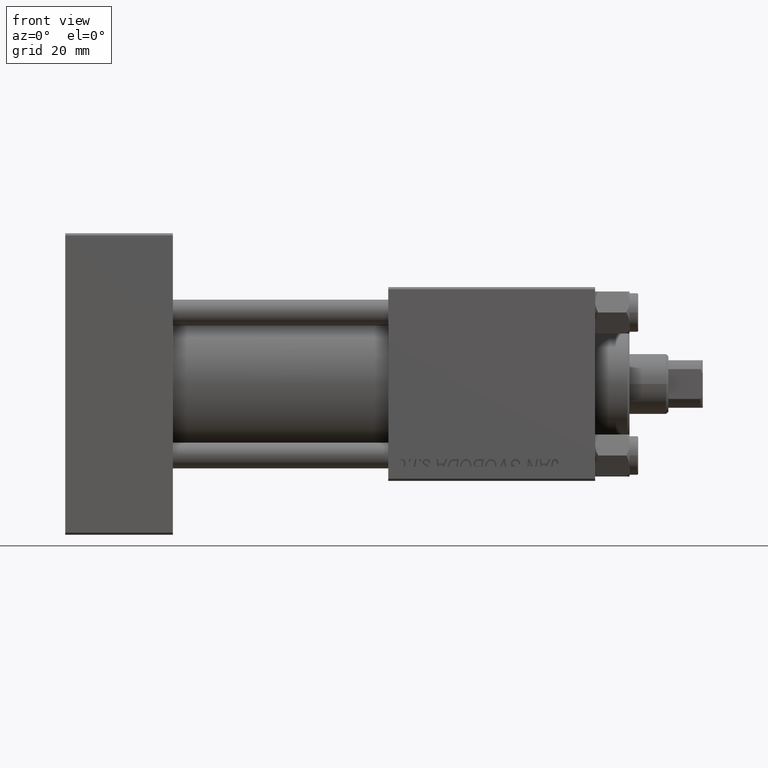
[diagram: clean part render]
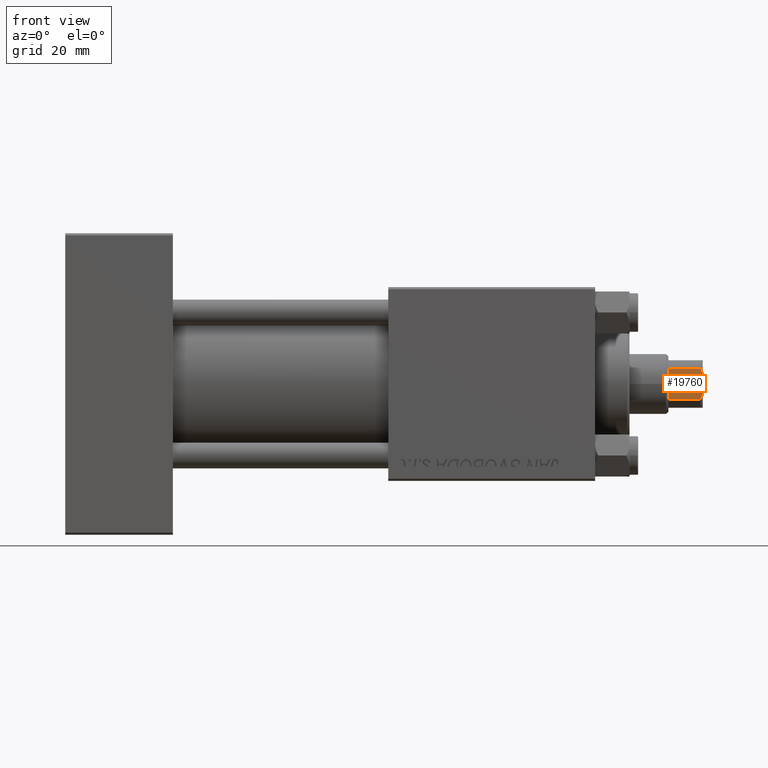
[diagram: same view with one face highlighted and labeled with its STEP entity id]
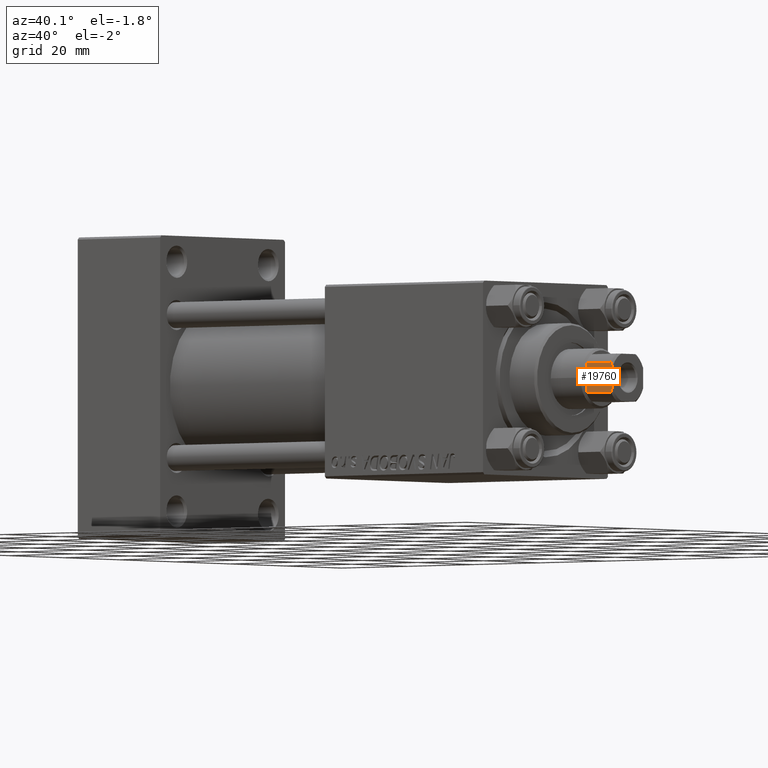
[diagram: same view with one face highlighted and labeled with its STEP entity id]
A machine part, front view. The second image highlights one B-rep face of the part: STEP entity #19760.
A second angle (auxiliary view) of the same face is appended — the face is thin or edge-on in the first view.
In plain terms, the highlighted planar face has unit normal (0, 1, 0).
Its self-contained STEP definition (entity closure, byte-faithful):
#389 = CARTESIAN_POINT ( 'NONE',  ( 5.499999999999999112, -3.464101615137757939, 114.9999999999999716 ) ) ;
#426 = CARTESIAN_POINT ( 'NONE',  ( 5.499999999999998224, -3.464101615137757051, -0.001000000000001000089 ) ) ;
#951 = CARTESIAN_POINT ( 'NONE',  ( 5.499999999999999112, 3.464101615137755719, 114.9999999999999716 ) ) ;
#1518 = DIRECTION ( 'NONE',  ( -0.000000000000000000, -0.000000000000000000, 1.000000000000000000 ) ) ;
#1941 = PLANE ( 'NONE',  #41063 ) ;
#2509 = LINE ( 'NONE', #18877, #28116 ) ;
#3013 = ORIENTED_EDGE ( 'NONE', *, *, #43647, .T. ) ;
#3487 = DIRECTION ( 'NONE',  ( -1.577021341797097560E-16, 1.000000000000000000, -0.000000000000000000 ) ) ;
#3798 = CARTESIAN_POINT ( 'NONE',  ( 5.500000000000000000, 2.397915761656341793, 123.0000000000000000 ) ) ;
#3955 = ORIENTED_EDGE ( 'NONE', *, *, #29113, .F. ) ;
#6218 = FACE_OUTER_BOUND ( 'NONE', #44638, .T. ) ;
#9879 = CARTESIAN_POINT ( 'NONE',  ( 5.499999999999998224, -3.464101615137757051, 122.5000000000000142 ) ) ;
#10010 = CARTESIAN_POINT ( 'NONE',  ( 5.499999999999999112, 5.500000000000000888, 123.0000000000000000 ) ) ;
#10581 = CARTESIAN_POINT ( 'NONE',  ( 5.499999999999998224, -3.464101615137757051, 122.5000000000000142 ) ) ;
#11242 = VERTEX_POINT ( 'NONE', #29785 ) ;
#11424 = CARTESIAN_POINT ( 'NONE',  ( 5.499999999999999112, 3.464101615137755719, 122.4999999999999858 ) ) ;
#14457 = EDGE_CURVE ( 'NONE', #11242, #22692, #38082, .T. ) ;
#14887 = EDGE_CURVE ( 'NONE', #23025, #22692, #35502, .T. ) ;
#15094 = CARTESIAN_POINT ( 'NONE',  ( 5.500000000000000000, -2.397915761656381761, 123.0000000000000000 ) ) ;
#17889 = ORIENTED_EDGE ( 'NONE', *, *, #25016, .T. ) ;
#18877 = CARTESIAN_POINT ( 'NONE',  ( 5.499999999999999112, 5.500000000000000888, 115.0000000000000000 ) ) ;
#19760 = ADVANCED_FACE ( 'NONE', ( #6218 ), #1941, .F. ) ;
#21914 = DIRECTION ( 'NONE',  ( -1.577021341797097560E-16, 1.000000000000000000, -0.000000000000000000 ) ) ;
#22086 = ORIENTED_EDGE ( 'NONE', *, *, #43630, .T. ) ;
#22634 = VERTEX_POINT ( 'NONE', #9879 ) ;
#22692 = VERTEX_POINT ( 'NONE', #3798 ) ;
#23025 = VERTEX_POINT ( 'NONE', #11424 ) ;
#25016 = EDGE_CURVE ( 'NONE', #34550, #23025, #28271, .T. ) ;
#25225 = CARTESIAN_POINT ( 'NONE',  ( 5.499999999999999112, 3.117237133530619264, 122.6848575093798672 ) ) ;
#25531 = VECTOR ( 'NONE', #3487, 1000.000000000000000 ) ;
#25935 = ORIENTED_EDGE ( 'NONE', *, *, #14457, .F. ) ;
#25958 = CARTESIAN_POINT ( 'NONE',  ( 5.500000000000000888, -2.763039233705806730, 122.8540774452369959 ) ) ;
#26199 = CARTESIAN_POINT ( 'NONE',  ( 5.500000000000000888, -3.117237133530634363, 122.6848575093798814 ) ) ;
#26439 = CARTESIAN_POINT ( 'NONE',  ( 5.499999999999999112, 5.500000000000000888, 123.0000000000000000 ) ) ;
#28040 = CARTESIAN_POINT ( 'NONE',  ( 5.499999999999999112, 3.464101615137755719, 122.4999999999999858 ) ) ;
#28116 = VECTOR ( 'NONE', #21914, 1000.000000000000000 ) ;
#28151 = B_SPLINE_CURVE_WITH_KNOTS ( 'NONE', 3,
 ( #15094, #25958, #26199, #10581 ),
 .UNSPECIFIED., .F., .F.,
 ( 4, 4 ),
 ( 4.336808689942017736E-19, 0.001177604464225487325 ),
 .UNSPECIFIED. ) ;
#28271 = LINE ( 'NONE', #31818, #38810 ) ;
#29113 = EDGE_CURVE ( 'NONE', #41818, #22634, #35011, .T. ) ;
#29785 = CARTESIAN_POINT ( 'NONE',  ( 5.500000000000000000, -2.397915761656381761, 123.0000000000000000 ) ) ;
#31711 = ORIENTED_EDGE ( 'NONE', *, *, #14887, .T. ) ;
#31818 = CARTESIAN_POINT ( 'NONE',  ( 5.499999999999999112, 3.464101615137755719, -0.001000000000001000089 ) ) ;
#33062 = CARTESIAN_POINT ( 'NONE',  ( 5.500000000000000000, 2.397915761656341793, 123.0000000000000000 ) ) ;
#34550 = VERTEX_POINT ( 'NONE', #951 ) ;
#35011 = LINE ( 'NONE', #426, #39853 ) ;
#35363 = DIRECTION ( 'NONE',  ( -1.000000000000000000, -1.577021341797097560E-16, 0.000000000000000000 ) ) ;
#35502 = B_SPLINE_CURVE_WITH_KNOTS ( 'NONE', 3,
 ( #28040, #25225, #48013, #33062 ),
 .UNSPECIFIED., .F., .F.,
 ( 4, 4 ),
 ( 0.000000000000000000, 0.001177604464225533295 ),
 .UNSPECIFIED. ) ;
#38082 = LINE ( 'NONE', #26439, #25531 ) ;
#38810 = VECTOR ( 'NONE', #1518, 1000.000000000000000 ) ;
#39853 = VECTOR ( 'NONE', #42610, 1000.000000000000000 ) ;
#41063 = AXIS2_PLACEMENT_3D ( 'NONE', #10010, #35363, #44624 ) ;
#41818 = VERTEX_POINT ( 'NONE', #389 ) ;
#42610 = DIRECTION ( 'NONE',  ( -0.000000000000000000, -0.000000000000000000, 1.000000000000000000 ) ) ;
#43630 = EDGE_CURVE ( 'NONE', #41818, #34550, #2509, .T. ) ;
#43647 = EDGE_CURVE ( 'NONE', #11242, #22634, #28151, .T. ) ;
#44624 = DIRECTION ( 'NONE',  ( 1.577021341797097560E-16, -1.000000000000000000, 0.000000000000000000 ) ) ;
#44638 = EDGE_LOOP ( 'NONE', ( #17889, #31711, #25935, #3013, #3955, #22086 ) ) ;
#48013 = CARTESIAN_POINT ( 'NONE',  ( 5.500000000000000000, 2.763039233705782749, 122.8540774452369959 ) ) ;